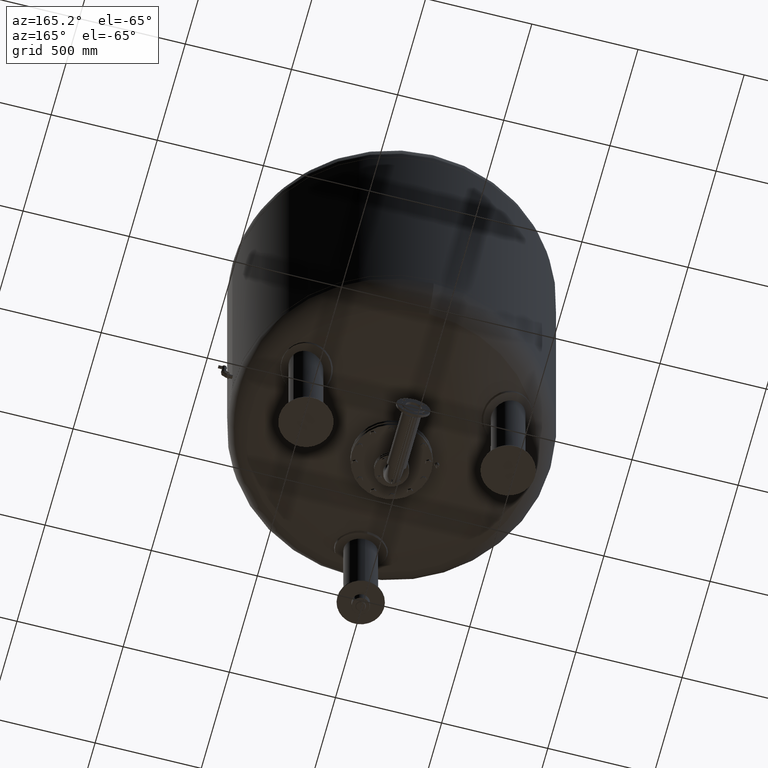
[diagram: clean part render]
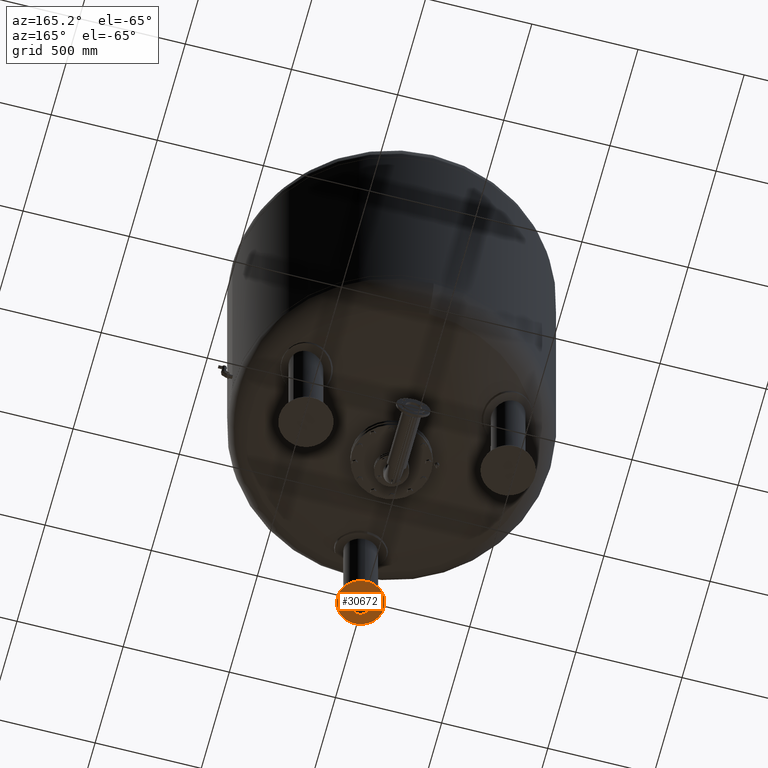
[diagram: same view with one face highlighted and labeled with its STEP entity id]
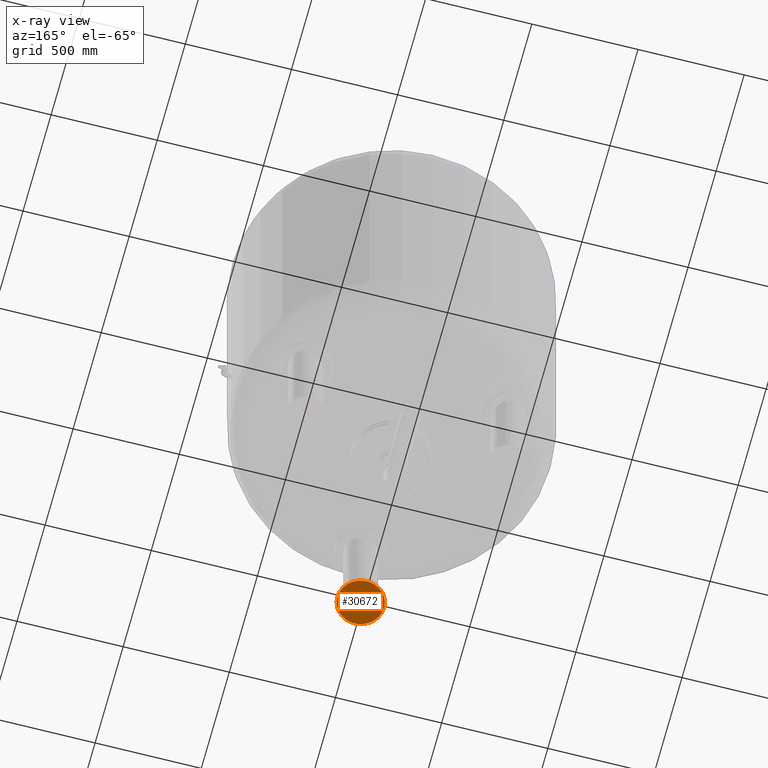
[diagram: x-ray of the same camera — body ghosted, the highlighted face saturated]
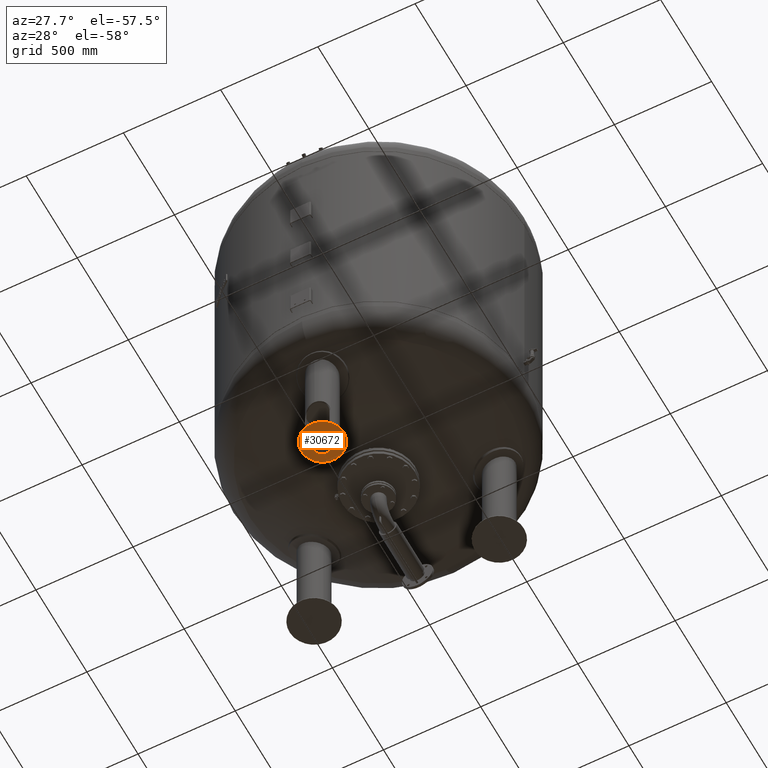
[diagram: same view with one face highlighted and labeled with its STEP entity id]
A machine part, auxiliary view. The second image highlights one B-rep face of the part: STEP entity #30672.
The next image is the same camera in x-ray: the body ghosted, the highlighted face saturated — about 0% of this face is hidden behind the body in this view.
A second angle (auxiliary view) of the same face is appended — the face is thin or edge-on in the first view.
In plain terms, the highlighted planar face has unit normal (0, 0, -1).
Its self-contained STEP definition (entity closure, byte-faithful):
#30487=CARTESIAN_POINT('',(110.0,-550.0,42.0));
#30488=VERTEX_POINT('',#30487);
#30504=CARTESIAN_POINT('',(-110.0,-550.0,42.0));
#30505=VERTEX_POINT('',#30504);
#30512=CARTESIAN_POINT('',(0.0,-550.0,42.0));
#30513=DIRECTION('',(0.0,0.0,-1.0));
#30514=DIRECTION('',(1.0,0.0,0.0));
#30515=AXIS2_PLACEMENT_3D('',#30512,#30513,#30514);
#30516=CIRCLE('',#30515,110.0);
#30517=EDGE_CURVE('',#30488,#30505,#30516,.T.);
#30527=CARTESIAN_POINT('',(10.0,-550.0,42.0));
#30528=VERTEX_POINT('',#30527);
#30537=CARTESIAN_POINT('',(-10.0,-550.0,42.0));
#30538=VERTEX_POINT('',#30537);
#30539=CARTESIAN_POINT('',(0.0,-550.0,42.0));
#30540=DIRECTION('',(0.0,0.0,1.0));
#30541=DIRECTION('',(1.0,0.0,0.0));
#30542=AXIS2_PLACEMENT_3D('',#30539,#30540,#30541);
#30543=CIRCLE('',#30542,10.0);
#30544=EDGE_CURVE('',#30538,#30528,#30543,.T.);
#30578=CARTESIAN_POINT('',(0.0,-550.0,42.0));
#30579=DIRECTION('',(0.0,0.0,1.0));
#30580=DIRECTION('',(1.0,0.0,0.0));
#30581=AXIS2_PLACEMENT_3D('',#30578,#30579,#30580);
#30582=CIRCLE('',#30581,10.0);
#30583=EDGE_CURVE('',#30528,#30538,#30582,.T.);
#30647=CARTESIAN_POINT('',(0.0,-550.0,42.0));
#30648=DIRECTION('',(0.0,0.0,-1.0));
#30649=DIRECTION('',(1.0,0.0,0.0));
#30650=AXIS2_PLACEMENT_3D('',#30647,#30648,#30649);
#30651=CIRCLE('',#30650,110.0);
#30652=EDGE_CURVE('',#30505,#30488,#30651,.T.);
#30659=CARTESIAN_POINT('',(0.0,-550.0,42.0));
#30660=DIRECTION('',(0.0,0.0,-1.0));
#30661=DIRECTION('',(-1.0,0.0,0.0));
#30662=AXIS2_PLACEMENT_3D('',#30659,#30660,#30661);
#30663=PLANE('',#30662);
#30664=ORIENTED_EDGE('',*,*,#30517,.T.);
#30665=ORIENTED_EDGE('',*,*,#30652,.T.);
#30666=EDGE_LOOP('',(#30664,#30665));
#30667=FACE_OUTER_BOUND('',#30666,.T.);
#30668=ORIENTED_EDGE('',*,*,#30583,.T.);
#30669=ORIENTED_EDGE('',*,*,#30544,.T.);
#30670=EDGE_LOOP('',(#30668,#30669));
#30671=FACE_BOUND('',#30670,.T.);
#30672=ADVANCED_FACE('',(#30667,#30671),#30663,.T.);